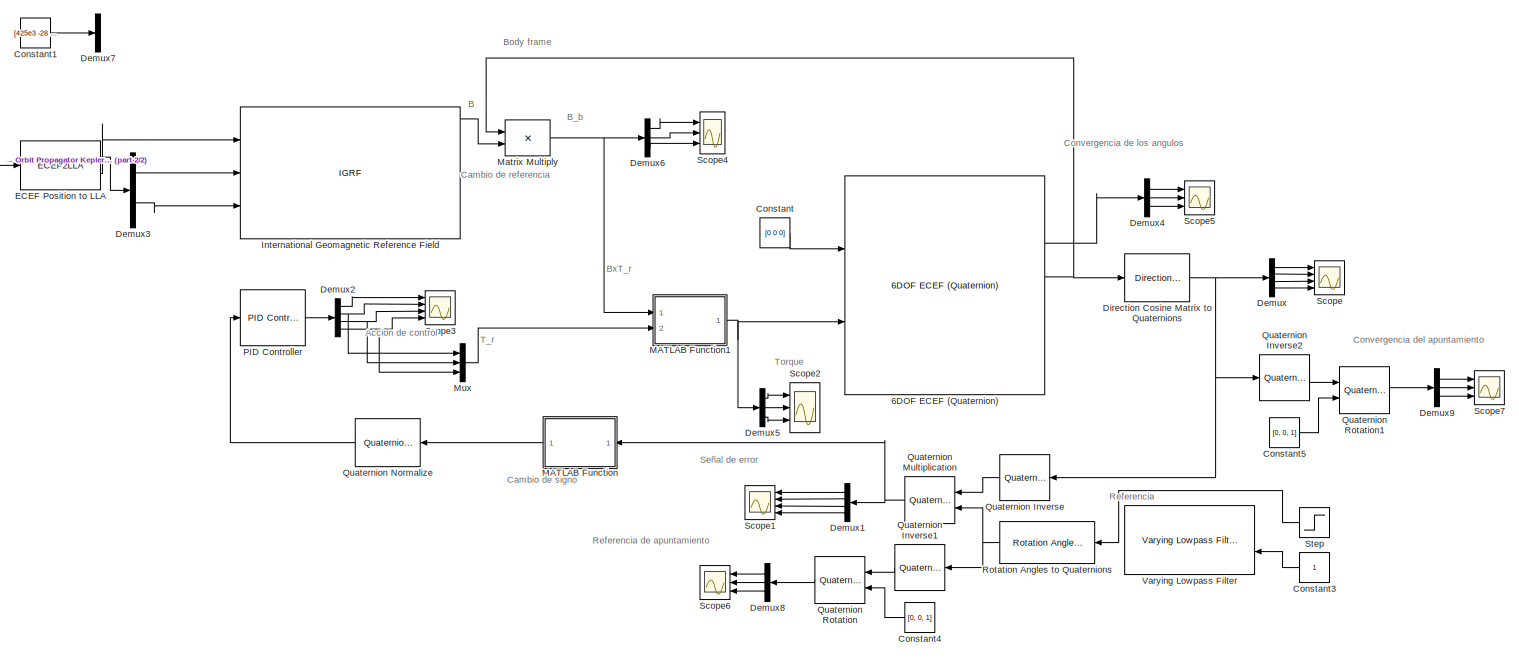
[diagram: root canvas - part 1/2, most of the canvas]
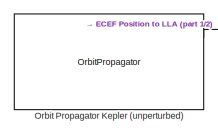
[diagram: root canvas - part 2/2, top left region]
MODEL slx_40b8322fb7b7
KIND model
CONFIG AbsTol = auto
CONFIG EnableMultiTasking = off
CONFIG FixedStep = 0.001
CONFIG MaxStep = auto
CONFIG MinStep = auto
CONFIG RelTol = 1e-3
CONFIG SampleTimeConstraint = Unconstrained
CONFIG SolverName = VariableStepAuto
CONFIG StartTime = 0.0
CONFIG StopTime = 20000
BLOCK [Reference] 6DOF ECEF (Quaternion)  REF=aerolib6dof2/6DOF ECEF (Quaternion)
  Ports = [2, 12]
  SourceBlock = aerolib6dof2/6DOF ECEF (Quaternion)
  SourceProductBaseCode = AE
  SourceType = 6DOF EoM (ECEF)
BLOCK [Constant] Constant
  Value = [0 0 0]
BLOCK [Constant] Constant1
  Value = [425e3 -28 155]
BLOCK [Constant] Constant3
  NameLocation = top
BLOCK [Constant] Constant4
  NameLocation = top
  Value = [0, 0, 1]
BLOCK [Constant] Constant5
  Value = [0, 0, 1]
BLOCK [Demux] Demux
  Ports = [1, 4]
BLOCK [Demux] Demux1
  Ports = [1, 4]
BLOCK [Demux] Demux2
  Ports = [1, 4]
BLOCK [Demux] Demux3
  Outputs = 2
  Ports = [1, 2]
BLOCK [Demux] Demux4
  Outputs = 3
  Ports = [1, 3]
BLOCK [Demux] Demux5
  Outputs = 3
  Ports = [1, 3]
BLOCK [Demux] Demux6
  Outputs = 3
  Ports = [1, 3]
BLOCK [Demux] Demux7
  Outputs = 3
  Ports = [1, 3]
BLOCK [Demux] Demux8
  NameLocation = top
  Outputs = 3
  Ports = [1, 3]
BLOCK [Demux] Demux9
  Outputs = 3
  Ports = [1, 3]
BLOCK [Reference] Direction Cosine Matrix to Quaternions  REF=sharedtransform/Direction Cosine Matrix 
to Quaternions
  Ports = [1, 1]
  SourceBlock = sharedtransform/Direction Cosine Matrix \nto Quaternions
  SourceProductBaseCode = AE,PW,DR,MT,UV,VE
  SourceType = DCM2Quaternion
BLOCK [ECEF2LLA] ECEF Position to LLA
  Ports = [1, 2]
BLOCK [IGRF] International Geomagnetic Reference Field
  AttributesFormatString = %<generation>
  Ports = [3, 10]
  day = 23
  month = February
  time_in = off
  year = 2024
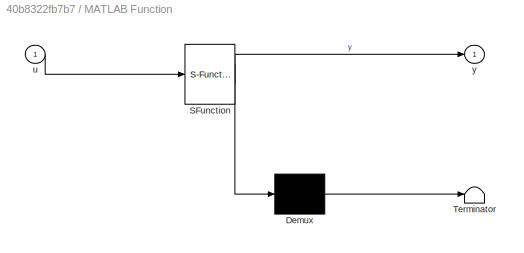
BLOCK [SubSystem] MATLAB Function
  ErrorFcn = Stateflow.Translate.translate
  PermitHierarchicalResolution = ExplicitOnly
  Ports = [1, 1]
  RequestExecContextInheritance = off
  SFBlockType = MATLAB Function
  TreatAsAtomicUnit = on
BLOCK [Demux] MATLAB Function/ Demux 
  Outputs = 1
  Ports = [1, 1]
BLOCK [S-Function] MATLAB Function/ SFunction 
  EnableBusSupport = on
  FunctionName = sf_sfun
  PortCounts = [1 2]
  Ports = [1, 2]
  SFcnIsStateOwnerBlock = off
  SFunctionDeploymentMode = off
  Tag = Stateflow S-Function 2
BLOCK [Terminator] MATLAB Function/ Terminator 
BLOCK [Inport] MATLAB Function/u
BLOCK [Outport] MATLAB Function/y
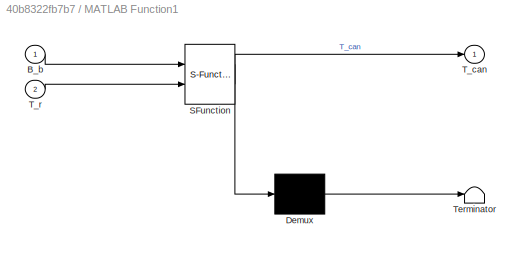
BLOCK [SubSystem] MATLAB Function1
  ErrorFcn = Stateflow.Translate.translate
  PermitHierarchicalResolution = ExplicitOnly
  Ports = [2, 1]
  RequestExecContextInheritance = off
  SFBlockType = MATLAB Function
  TreatAsAtomicUnit = on
BLOCK [Demux] MATLAB Function1/ Demux 
  Outputs = 1
  Ports = [1, 1]
BLOCK [S-Function] MATLAB Function1/ SFunction 
  EnableBusSupport = on
  FunctionName = sf_sfun
  PortCounts = [2 2]
  Ports = [2, 2]
  SFcnIsStateOwnerBlock = off
  SFunctionDeploymentMode = off
  Tag = Stateflow S-Function 1
BLOCK [Terminator] MATLAB Function1/ Terminator 
BLOCK [Inport] MATLAB Function1/B_b
BLOCK [Outport] MATLAB Function1/T_can
BLOCK [Inport] MATLAB Function1/T_r
  Port = 2
BLOCK [Product] Matrix Multiply
  Multiplication = Matrix(*)
  Ports = [2, 1]
BLOCK [Mux] Mux
  DisplayOption = bar
  Inputs = 3
  Ports = [3, 1]
BLOCK [OrbitPropagator] Orbit Propagator Kepler (unperturbed)
  Ports = [0, 3]
  customJ2 = 1.0826269e-03
  customMu = 4.305e13
  eccentricity = 0.0005
  inclination = 98.06
  raan = 105
  startDate = [2024, 02, 23, 12, 32, 16]
  timeFormat = Gregorian
  trueAnomaly = 180
BLOCK [Reference] PID Controller  REF=pid_lib/PID Controller
  Ports = [1, 1]
  SourceBlock = pid_lib/PID Controller
  SourceProductBaseCode = SL
  SourceType = PID 1dof
BLOCK [Reference] Quaternion Inverse  REF=aerolibutil/Quaternion
Inverse
  Ports = [1, 1]
  SourceBlock = aerolibutil/Quaternion\nInverse
  SourceProductBaseCode = AE
  SourceType = Quaternion Inverse
BLOCK [Reference] Quaternion Inverse1  REF=aerolibutil/Quaternion
Inverse
  Ports = [1, 1]
  SourceBlock = aerolibutil/Quaternion\nInverse
  SourceProductBaseCode = AE
  SourceType = Quaternion Inverse
BLOCK [Reference] Quaternion Inverse2  REF=aerolibutil/Quaternion
Inverse
  NameLocation = top
  Ports = [1, 1]
  SourceBlock = aerolibutil/Quaternion\nInverse
  SourceProductBaseCode = AE
  SourceType = Quaternion Inverse
BLOCK [Reference] Quaternion Multiplication  REF=aerolibutil/Quaternion
Multiplication
  Ports = [2, 1]
  SourceBlock = aerolibutil/Quaternion\nMultiplication
  SourceProductBaseCode = AE
  SourceType = Quaternion Multiplication
BLOCK [Reference] Quaternion Normalize  REF=sharedutil/Quaternion
Normalize
  Ports = [1, 1]
  SourceBlock = sharedutil/Quaternion\nNormalize
  SourceProductBaseCode = AE,PW,DR,MT,UV,VE
  SourceType = Quaternion Normalize
BLOCK [Reference] Quaternion Rotation  REF=aerolibutil/Quaternion
Rotation
  NameLocation = top
  Ports = [2, 1]
  SourceBlock = aerolibutil/Quaternion\nRotation
  SourceProductBaseCode = AE
  SourceType = Quaternion Rotation
BLOCK [Reference] Quaternion Rotation1  REF=aerolibutil/Quaternion
Rotation
  Ports = [2, 1]
  SourceBlock = aerolibutil/Quaternion\nRotation
  SourceProductBaseCode = AE
  SourceType = Quaternion Rotation
BLOCK [Reference] Rotation Angles to Quaternions  REF=sharedtransform/Rotation Angles to Quaternions
  AttributesFormatString = Rotation Order: %<rotationOrder>
  Ports = [1, 1]
  SourceBlock = sharedtransform/Rotation Angles to Quaternions
  SourceProductBaseCode = AE,PW,DR,MT,UV,VE
  SourceType = Ang2Quat
BLOCK [Scope] Scope
  Floating = off
  NumInputPorts = 4
  Ports = [4]
  ScopeSpecificationString = Simulink.scopes.TimeScopeBlockCfg('CurrentConfiguration', extmgr.ConfigurationSet(extmgr.Configuration('Core','General UI',true),extmgr.Configuration('Core','Source UI',true),extmgr.Configuration('Sources','WiredSimulink',true),extmgr.Configuration('Visuals','Time Domain',true,'SerializedDisplays',{struct('MinYLimReal','-0.6875','MaxYLimReal','1.1875','YLabelReal','','MinYLimMag','0.00000','MaxYLi...<+3409ch>
BLOCK [Scope] Scope1
  Floating = off
  NumInputPorts = 4
  Ports = [4]
  ScopeSpecificationString = Simulink.scopes.TimeScopeBlockCfg('CurrentConfiguration', extmgr.ConfigurationSet(extmgr.Configuration('Core','General UI',true),extmgr.Configuration('Core','Source UI',true),extmgr.Configuration('Sources','WiredSimulink',true,'DataLoggingVariableName','ScopeData1'),extmgr.Configuration('Visuals','Time Domain',true,'SerializedDisplays',{struct('MinYLimReal','0.98003','MaxYLimReal','1.00222','YLabe...<+3500ch>
BLOCK [Scope] Scope2
  Floating = off
  NumInputPorts = 3
  Ports = [3]
  ScopeSpecificationString = Simulink.scopes.TimeScopeBlockCfg('CurrentConfiguration', extmgr.ConfigurationSet(extmgr.Configuration('Core','General UI',true),extmgr.Configuration('Core','Source UI',true),extmgr.Configuration('Sources','WiredSimulink',true,'DataLoggingVariableName','ScopeData1'),extmgr.Configuration('Visuals','Time Domain',true,'SerializedDisplays',{struct('MinYLimReal','-0.000013','MaxYLimReal','0.000013','YL...<+1602ch>
BLOCK [Scope] Scope3
  Floating = off
  NumInputPorts = 4
  Ports = [4]
  ScopeSpecificationString = Simulink.scopes.TimeScopeBlockCfg('CurrentConfiguration', extmgr.ConfigurationSet(extmgr.Configuration('Core','General UI',true),extmgr.Configuration('Core','Source UI',true),extmgr.Configuration('Sources','WiredSimulink',true,'DataLoggingVariableName','ScopeData3'),extmgr.Configuration('Visuals','Time Domain',true,'SerializedDisplays',{struct('MinYLimReal','-2160.19903','MaxYLimReal','3906.79989'...<+3525ch>
BLOCK [Scope] Scope4
  Floating = off
  NumInputPorts = 3
  Ports = [3]
  ScopeSpecificationString = Simulink.scopes.TimeScopeBlockCfg('CurrentConfiguration', extmgr.ConfigurationSet(extmgr.Configuration('Core','General UI',true),extmgr.Configuration('Core','Source UI',true),extmgr.Configuration('Sources','WiredSimulink',true,'DataLoggingVariableName','ScopeData2'),extmgr.Configuration('Visuals','Time Domain',true,'SerializedDisplays',{struct('MinYLimReal','-65026.2606','MaxYLimReal','62228.36646...<+1442ch>
BLOCK [Scope] Scope5
  Floating = off
  NumInputPorts = 3
  Ports = [3]
  ScopeSpecificationString = Simulink.scopes.TimeScopeBlockCfg('CurrentConfiguration', extmgr.ConfigurationSet(extmgr.Configuration('Core','General UI',true),extmgr.Configuration('Core','Source UI',true),extmgr.Configuration('Sources','WiredSimulink',true,'DataLoggingVariableName','ScopeData5'),extmgr.Configuration('Visuals','Time Domain',true,'SerializedDisplays',{struct('MinYLimReal','-0.08324','MaxYLimReal','0.1737','YLabe...<+2791ch>
BLOCK [Scope] Scope6
  Floating = off
  NameLocation = top
  NumInputPorts = 3
  Ports = [3]
  ScopeSpecificationString = Simulink.scopes.TimeScopeBlockCfg('CurrentConfiguration', extmgr.ConfigurationSet(extmgr.Configuration('Core','General UI',true),extmgr.Configuration('Core','Source UI',true),extmgr.Configuration('Sources','WiredSimulink',true,'DataLoggingVariableName','ScopeData1'),extmgr.Configuration('Visuals','Time Domain',true,'SerializedDisplays',{struct('MinYLimReal','-0.01242','MaxYLimReal','0.11175','YLab...<+2792ch>
BLOCK [Scope] Scope7
  Floating = off
  NumInputPorts = 3
  Ports = [3]
  ScopeSpecificationString = Simulink.scopes.TimeScopeBlockCfg('CurrentConfiguration', extmgr.ConfigurationSet(extmgr.Configuration('Core','General UI',true),extmgr.Configuration('Core','Source UI',true),extmgr.Configuration('Sources','WiredSimulink',true,'DataLoggingVariableName','ScopeData2'),extmgr.Configuration('Visuals','Time Domain',true,'SerializedDisplays',{struct('MinYLimReal','-0.0192','MaxYLimReal','0.17277','YLabe...<+2816ch>
BLOCK [Step] Step
  After = [0, 0.1, 0.1]
  Before = [0, 0, 0]
  SampleTime = 0
BLOCK [Reference] Varying Lowpass Filter  REF=cstblocks/Linear Parameter Varying/Varying Lowpass Filter
  NameLocation = top
  Ports = [2, 1]
  SourceBlock = cstblocks/Linear Parameter Varying/Varying Lowpass Filter
  SourceProductBaseCode = CT
  SourceType = Varying Lowpass Filter
ANNOTATION (root): Accion de control
ANNOTATION (root): B
ANNOTATION (root): B_b
ANNOTATION (root): Body frame
ANNOTATION (root): BxT_r
ANNOTATION (root): Cambio de referencia
ANNOTATION (root): Cambio de signo
ANNOTATION (root): Convergencia de los angulos
ANNOTATION (root): Convergencia del apuntamiento
ANNOTATION (root): Referencia
ANNOTATION (root): Referencia de apuntamiento
ANNOTATION (root): Señal de error
ANNOTATION (root): T_r
ANNOTATION (root): Torque
LINE 6DOF ECEF (Quaternion):4 -> Demux4:1
NET 6DOF ECEF (Quaternion):6 -> Direction Cosine Matrix to Quaternions:1, Matrix Multiply:1
LINE Constant1:1 -> Demux7:1
LINE Constant3:1 -> Varying Lowpass Filter:2
LINE Constant4:1 -> Quaternion Rotation:2
LINE Constant5:1 -> Quaternion Rotation1:2
LINE Constant:1 -> 6DOF ECEF (Quaternion):1
LINE Demux1:1 -> Scope1:1
LINE Demux1:2 -> Scope1:2
LINE Demux1:3 -> Scope1:3
LINE Demux1:4 -> Scope1:4
LINE Demux2:1 -> Scope3:1
NET Demux2:2 -> Mux:1, Scope3:2
NET Demux2:3 -> Mux:2, Scope3:3
NET Demux2:4 -> Mux:3, Scope3:4
LINE Demux3:1 -> International Geomagnetic Reference Field:2
LINE Demux3:2 -> International Geomagnetic Reference Field:3
LINE Demux4:1 -> Scope5:1
LINE Demux4:2 -> Scope5:2
LINE Demux4:3 -> Scope5:3
LINE Demux5:1 -> Scope2:1
LINE Demux5:2 -> Scope2:2
LINE Demux5:3 -> Scope2:3
LINE Demux6:1 -> Scope4:1
LINE Demux6:2 -> Scope4:2
LINE Demux6:3 -> Scope4:3
LINE Demux8:1 -> Scope6:1
LINE Demux8:2 -> Scope6:2
LINE Demux8:3 -> Scope6:3
LINE Demux9:1 -> Scope7:1
LINE Demux9:2 -> Scope7:2
LINE Demux9:3 -> Scope7:3
LINE Demux:1 -> Scope:1
LINE Demux:2 -> Scope:2
LINE Demux:3 -> Scope:3
LINE Demux:4 -> Scope:4
NET Direction Cosine Matrix to Quaternions:1 -> Demux:1, Quaternion Inverse2:1, Quaternion Inverse:1
LINE ECEF Position to LLA:1 -> Demux3:1
LINE ECEF Position to LLA:2 -> International Geomagnetic Reference Field:1
LINE International Geomagnetic Reference Field:1 -> Matrix Multiply:2
NET MATLAB Function1:1 -> 6DOF ECEF (Quaternion):2, Demux5:1
LINE MATLAB Function:1 -> Quaternion Normalize:1
NET Matrix Multiply:1 -> Demux6:1, MATLAB Function1:1
LINE Mux:1 -> MATLAB Function1:2
LINE Orbit Propagator Kepler (unperturbed):1 -> ECEF Position to LLA:1
LINE PID Controller:1 -> Demux2:1
LINE Quaternion Inverse1:1 -> Quaternion Rotation:1
LINE Quaternion Inverse2:1 -> Quaternion Rotation1:1
LINE Quaternion Inverse:1 -> Quaternion Multiplication:1
NET Quaternion Multiplication:1 -> Demux1:1, MATLAB Function:1
LINE Quaternion Normalize:1 -> PID Controller:1
LINE Quaternion Rotation1:1 -> Demux9:1
LINE Quaternion Rotation:1 -> Demux8:1
NET Rotation Angles to Quaternions:1 -> Quaternion Inverse1:1, Quaternion Multiplication:2
LINE Step:1 -> Rotation Angles to Quaternions:1
note: NET lines group one-source signal fan-out (src -> all destinations, sorted); 1:1 wires keep LINE
CHART MATLAB Function states=1 transitions=1
  STATE_LABEL 'eML_blk_kernel()'
  STATE_LABEL "SCRIPT:\nfunction y = fcn(u)\n    %B_norm2 = norm(B_b)^2;\n    %u_aux = u(2:4);\n    %Proyecto el error sobre el plano perpendicular a B_b\n    %u_proy = u_aux - (dot(u_aux, B_b)/B_norm2)*B_b;\n    %u_proy = u_proy(:);\n    if u(1) < 0\n        y = -u; %-[u(1), u_proy'];\n        y(4) = 0;\n %Ya que nuesntra planta no deberia depender de la tercer componente \n    else \n        y = u;%[u(1), u_proy'];\n      ...<+24ch>"
CHART MATLAB Function1 states=1 transitions=1
  STATE_LABEL 'eML_blk_kernel()'
  STATE_LABEL 'SCRIPT:\nfunction T_can = fcn(B_b, T_r)\n%{\n    B_escalado = B_b * 1e-9;\n    B_norm = norm(B_escalado);\n    if B_norm < 1e-12 %Por si es muy chico\n        T_can = [0; 0; 0];\n        return;\n    end\n    M = cross(B_escalado, T_r)/(B_norm^2);\n    %Limites de saturacion del momento magnetico\n    %M(3) = 0;\n    M_max = 0.2;\n    for i = 1:3\n        if M(i) > M_max\n            M(i) = M_max;\n        elseif...<+954ch>'
CHART  states=0 transitions=0
CHART  states=0 transitions=0
